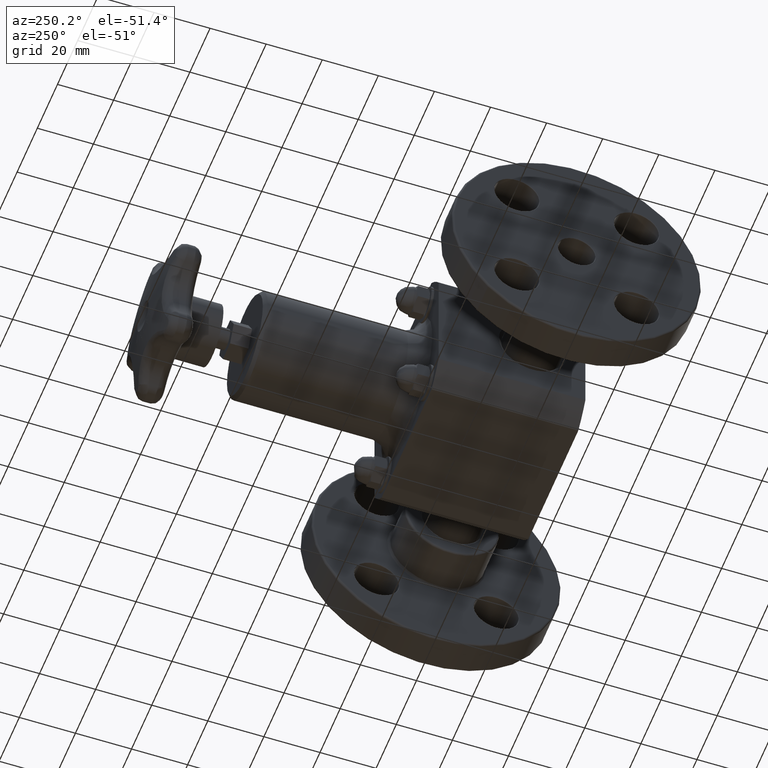
[diagram: clean part render]
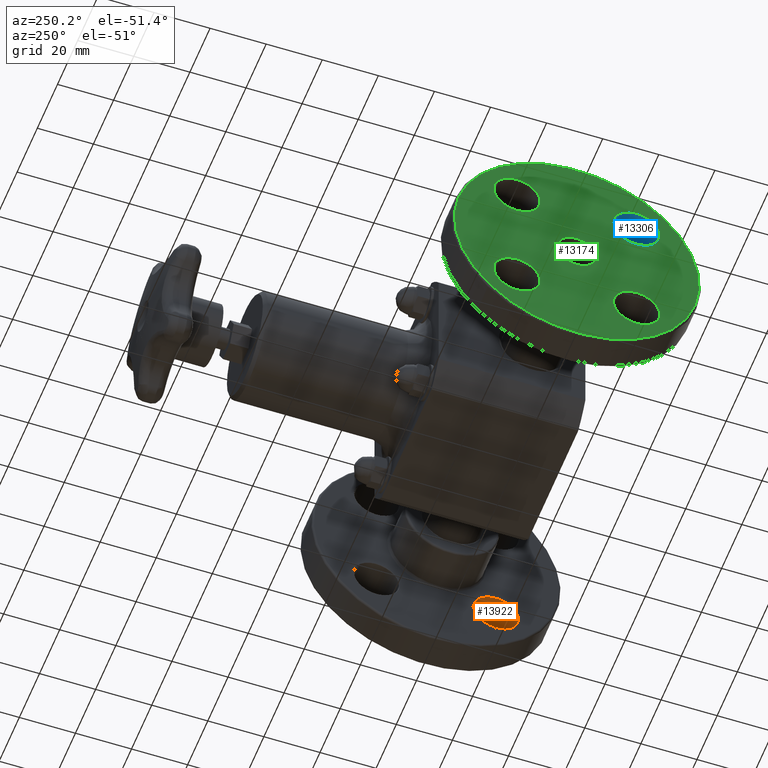
[diagram: same view with three faces highlighted in distinct colors, each labeled with its STEP entity id]
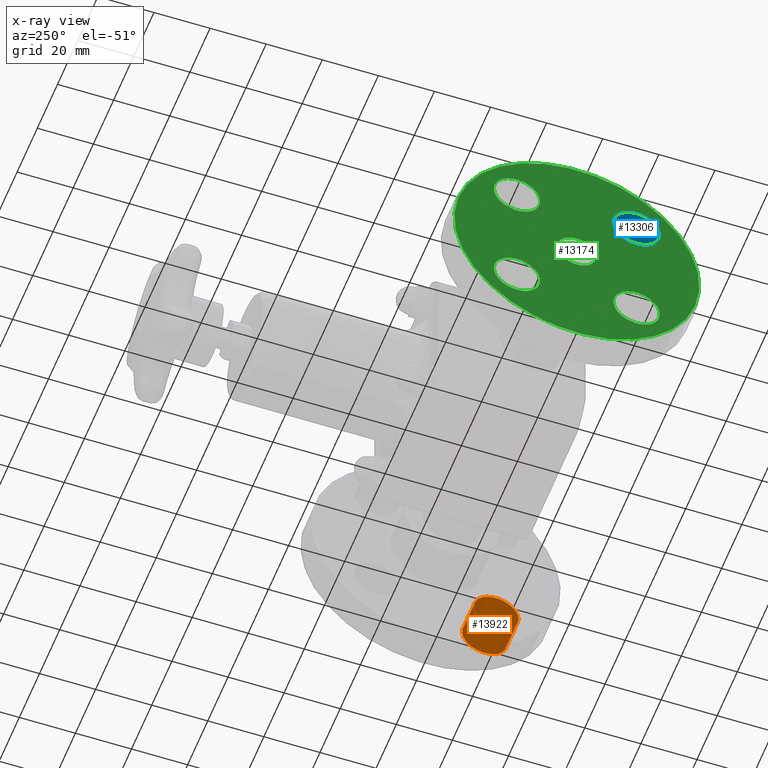
[diagram: x-ray of the same camera — body ghosted, the three highlighted faces saturated]
A machine part, auxiliary view with three faces highlighted in distinct colors.
The next image is the same camera in x-ray (body ghosted, the three faces saturated) — at least one of them is partly hidden behind the body in this view.
Their STEP definitions:

[orange] entity #13922 — the highlighted cylindrical surface (bore or boss wall) has radius 8.001 mm, axis along (1, 0, 0).
#13888=CARTESIAN_POINT('',(2.960000000000000,0.123049333414729,-1.062427938732794));
#13889=VERTEX_POINT('',#13888);
#13890=CARTESIAN_POINT('',(2.960000000000000,-0.099689302659033,-0.839689302659031));
#13891=DIRECTION('',(-1.0,6.123234E-017,-6.123234E-017));
#13892=DIRECTION('',(-8.659561E-017,-0.707106781186547,0.707106781186548));
#13893=AXIS2_PLACEMENT_3D('',#13890,#13891,#13892);
#13894=CIRCLE('',#13893,0.315000000000000);
#13895=EDGE_CURVE('',#13889,#13889,#13894,.T.);
#13903=CARTESIAN_POINT('',(2.500000000000000,-0.099689302659033,-0.839689302659031));
#13904=DIRECTION('',(1.0,4.930381E-032,1.224647E-016));
#13905=DIRECTION('',(-8.659561E-017,-0.707106781186547,0.707106781186548));
#13906=AXIS2_PLACEMENT_3D('',#13903,#13904,#13905);
#13907=CYLINDRICAL_SURFACE('',#13906,0.315000000000000);
#13908=CARTESIAN_POINT('',(2.510000000000000,0.123049333414729,-1.062427938732794));
#13909=VERTEX_POINT('',#13908);
#13910=CARTESIAN_POINT('',(2.510000000000000,-0.099689302659033,-0.839689302659031));
#13911=DIRECTION('',(1.0,-6.123234E-017,6.123234E-017));
#13912=DIRECTION('',(-8.659561E-017,-0.707106781186547,0.707106781186548));
#13913=AXIS2_PLACEMENT_3D('',#13910,#13911,#13912);
#13914=CIRCLE('',#13913,0.315000000000000);
#13915=EDGE_CURVE('',#13909,#13909,#13914,.T.);
#13916=ORIENTED_EDGE('',*,*,#13915,.F.);
#13917=EDGE_LOOP('',(#13916));
#13918=FACE_OUTER_BOUND('',#13917,.T.);
#13919=ORIENTED_EDGE('',*,*,#13895,.F.);
#13920=EDGE_LOOP('',(#13919));
#13921=FACE_BOUND('',#13920,.T.);
#13922=ADVANCED_FACE('',(#13918,#13921),#13907,.F.);

[blue] entity #13306 — the highlighted cylindrical surface (bore or boss wall) has radius 8.001 mm, axis along (-1, 0, 0).
#13272=CARTESIAN_POINT('',(-2.960000000000000,0.123049333414736,1.062427938732818));
#13273=VERTEX_POINT('',#13272);
#13274=CARTESIAN_POINT('',(-2.960000000000000,-0.099689302659026,0.839689302659055));
#13275=DIRECTION('',(1.0,-1.860345E-016,-1.860345E-016));
#13276=DIRECTION('',(-2.630925E-016,-0.707106781186547,-0.707106781186548));
#13277=AXIS2_PLACEMENT_3D('',#13274,#13275,#13276);
#13278=CIRCLE('',#13277,0.315000000000000);
#13279=EDGE_CURVE('',#13273,#13273,#13278,.T.);
#13287=CARTESIAN_POINT('',(-2.500000000000000,-0.099689302659026,0.839689302659055));
#13288=DIRECTION('',(-1.0,3.695007E-032,3.720690E-016));
#13289=DIRECTION('',(-2.630925E-016,-0.707106781186547,-0.707106781186548));
#13290=AXIS2_PLACEMENT_3D('',#13287,#13288,#13289);
#13291=CYLINDRICAL_SURFACE('',#13290,0.315000000000000);
#13292=CARTESIAN_POINT('',(-2.510000000000000,0.123049333414736,1.062427938732817));
#13293=VERTEX_POINT('',#13292);
#13294=CARTESIAN_POINT('',(-2.510000000000000,-0.099689302659026,0.839689302659055));
#13295=DIRECTION('',(-1.0,1.860345E-016,1.860345E-016));
#13296=DIRECTION('',(-2.630925E-016,-0.707106781186547,-0.707106781186548));
#13297=AXIS2_PLACEMENT_3D('',#13294,#13295,#13296);
#13298=CIRCLE('',#13297,0.315000000000000);
#13299=EDGE_CURVE('',#13293,#13293,#13298,.T.);
#13300=ORIENTED_EDGE('',*,*,#13299,.F.);
#13301=EDGE_LOOP('',(#13300));
#13302=FACE_OUTER_BOUND('',#13301,.T.);
#13303=ORIENTED_EDGE('',*,*,#13279,.F.);
#13304=EDGE_LOOP('',(#13303));
#13305=FACE_BOUND('',#13304,.T.);
#13306=ADVANCED_FACE('',(#13302,#13305),#13291,.F.);

[green] entity #13174 — the highlighted planar face has unit normal (-1, 0, 0).
#13068=CARTESIAN_POINT('',(-2.970000000000001,1.956223663640862,-1.216223663640832));
#13069=VERTEX_POINT('',#13068);
#13070=CARTESIAN_POINT('',(-2.970000000000000,0.739999999999999,2.997731E-014));
#13071=DIRECTION('',(1.0,1.860345E-016,-1.860345E-016));
#13072=DIRECTION('',(2.630925E-016,-0.707106781186548,0.707106781186547));
#13073=AXIS2_PLACEMENT_3D('',#13070,#13071,#13072);
#13074=CIRCLE('',#13073,1.720000000000000);
#13075=EDGE_CURVE('',#13069,#13069,#13074,.T.);
#13111=CARTESIAN_POINT('',(-2.970000000000001,1.451702975264260,-0.711702975264230));
#13112=DIRECTION('',(-1.0,0.0,0.0));
#13113=DIRECTION('',(0.0,0.707106781186547,0.707106781186548));
#13114=AXIS2_PLACEMENT_3D('',#13111,#13112,#13113);
#13115=PLANE('',#13114);
#13116=ORIENTED_EDGE('',*,*,#13075,.F.);
#13117=EDGE_LOOP('',(#13116));
#13118=FACE_OUTER_BOUND('',#13117,.T.);
#13119=CARTESIAN_POINT('',(-2.970000000000000,1.809499006544652,0.609879598773428));
#13120=VERTEX_POINT('',#13119);
#13121=CARTESIAN_POINT('',(-2.970000000000000,1.579689302659024,0.839689302659056));
#13122=DIRECTION('',(-1.000000000000000,-1.860345E-016,1.860345E-016));
#13123=DIRECTION('',(2.630925E-016,-0.707106781186548,0.707106781186547));
#13124=AXIS2_PLACEMENT_3D('',#13121,#13122,#13123);
#13125=CIRCLE('',#13124,0.325000000000000);
#13126=EDGE_CURVE('',#13120,#13120,#13125,.T.);
#13127=ORIENTED_EDGE('',*,*,#13126,.F.);
#13128=EDGE_LOOP('',(#13127));
#13129=FACE_BOUND('',#13128,.T.);
#13130=CARTESIAN_POINT('',(-2.970000000000000,0.130120401226601,1.069499006544683));
#13131=VERTEX_POINT('',#13130);
#13132=CARTESIAN_POINT('',(-2.970000000000000,-0.099689302659026,0.839689302659055));
#13133=DIRECTION('',(-1.000000000000000,1.860345E-016,1.860345E-016));
#13134=DIRECTION('',(-2.630925E-016,-0.707106781186547,-0.707106781186548));
#13135=AXIS2_PLACEMENT_3D('',#13132,#13133,#13134);
#13136=CIRCLE('',#13135,0.325000000000000);
#13137=EDGE_CURVE('',#13131,#13131,#13136,.T.);
#13138=ORIENTED_EDGE('',*,*,#13137,.F.);
#13139=EDGE_LOOP('',(#13138));
#13140=FACE_BOUND('',#13139,.T.);
#13141=CARTESIAN_POINT('',(-2.970000000000001,-0.329499006544654,-0.609879598773368));
#13142=VERTEX_POINT('',#13141);
#13143=CARTESIAN_POINT('',(-2.970000000000001,-0.099689302659026,-0.839689302658996));
#13144=DIRECTION('',(-1.000000000000000,-1.860345E-016,1.860345E-016));
#13145=DIRECTION('',(-2.630925E-016,0.707106781186548,-0.707106781186547));
#13146=AXIS2_PLACEMENT_3D('',#13143,#13144,#13145);
#13147=CIRCLE('',#13146,0.325000000000000);
#13148=EDGE_CURVE('',#13142,#13142,#13147,.T.);
#13149=ORIENTED_EDGE('',*,*,#13148,.F.);
#13150=EDGE_LOOP('',(#13149));
#13151=FACE_BOUND('',#13150,.T.);
#13152=CARTESIAN_POINT('',(-2.970000000000000,0.933040151263927,-0.193040151263897));
#13153=VERTEX_POINT('',#13152);
#13154=CARTESIAN_POINT('',(-2.970000000000000,0.739999999999999,2.997731E-014));
#13155=DIRECTION('',(-1.000000000000000,-1.860345E-016,1.860345E-016));
#13156=DIRECTION('',(2.630925E-016,-0.707106781186548,0.707106781186547));
#13157=AXIS2_PLACEMENT_3D('',#13154,#13155,#13156);
#13158=CIRCLE('',#13157,0.273000000000000);
#13159=EDGE_CURVE('',#13153,#13153,#13158,.T.);
#13160=ORIENTED_EDGE('',*,*,#13159,.F.);
#13161=EDGE_LOOP('',(#13160));
#13162=FACE_BOUND('',#13161,.T.);
#13163=CARTESIAN_POINT('',(-2.970000000000001,1.349879598773397,-1.069499006544623));
#13164=VERTEX_POINT('',#13163);
#13165=CARTESIAN_POINT('',(-2.970000000000001,1.579689302659025,-0.839689302658995));
#13166=DIRECTION('',(-1.000000000000000,1.860345E-016,1.860345E-016));
#13167=DIRECTION('',(2.630925E-016,0.707106781186547,0.707106781186548));
#13168=AXIS2_PLACEMENT_3D('',#13165,#13166,#13167);
#13169=CIRCLE('',#13168,0.325000000000000);
#13170=EDGE_CURVE('',#13164,#13164,#13169,.T.);
#13171=ORIENTED_EDGE('',*,*,#13170,.F.);
#13172=EDGE_LOOP('',(#13171));
#13173=FACE_BOUND('',#13172,.T.);
#13174=ADVANCED_FACE('',(#13118,#13129,#13140,#13151,#13162,#13173),#13115,.T.);